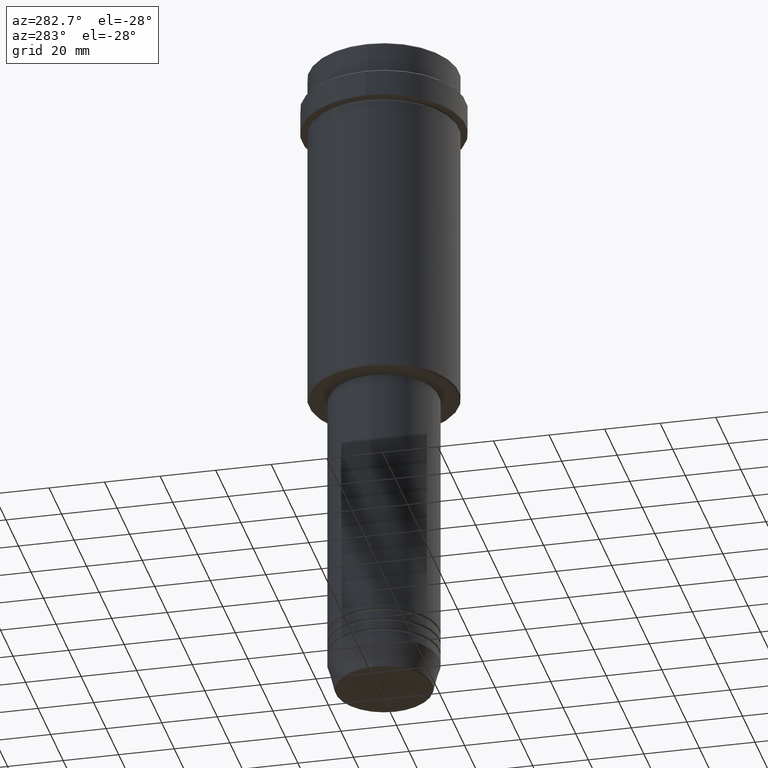
[diagram: clean part render]
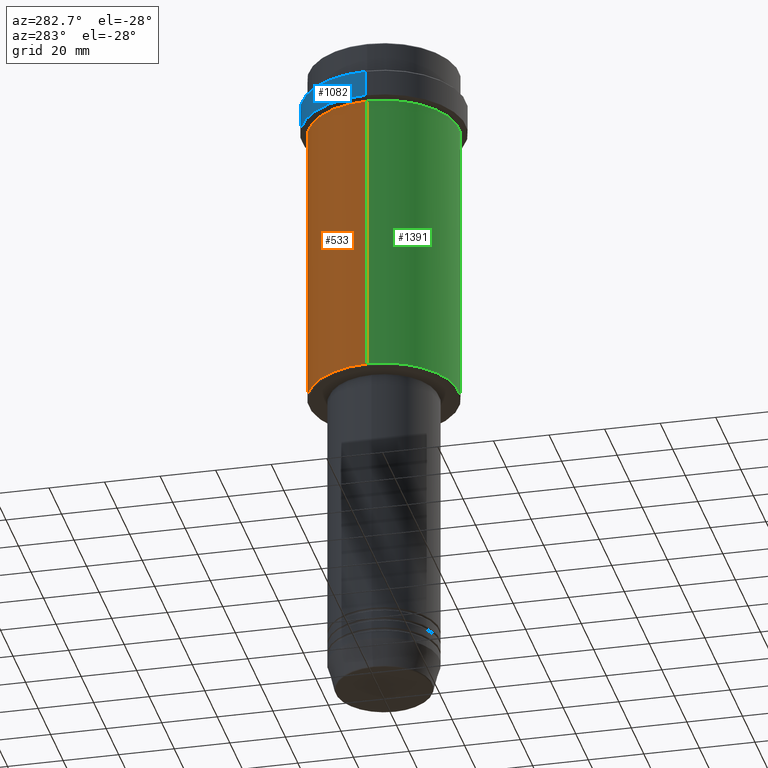
[diagram: same view with three faces highlighted in distinct colors, each labeled with its STEP entity id]
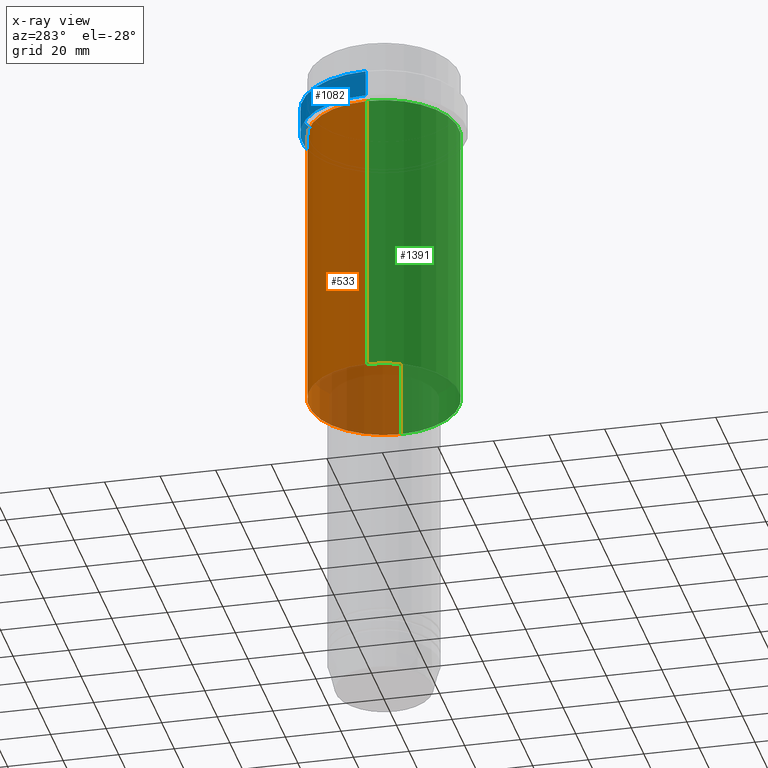
[diagram: x-ray of the same camera — body ghosted, the three highlighted faces saturated]
A machine part, auxiliary view with three faces highlighted in distinct colors.
The next image is the same camera in x-ray (body ghosted, the three faces saturated) — at least one of them is partly hidden behind the body in this view.
Their STEP definitions:

[orange] entity #533 — the highlighted cylindrical surface (partial cylindrical patch) has radius 27 mm, axis along (-0, -0, 1).
#12 = CARTESIAN_POINT ( 'NONE',  ( -27.00000000000000355, 3.306546357697854128E-15, -127.5000000000000000 ) ) ;
#21 = LINE ( 'NONE', #792, #1054 ) ;
#65 = DIRECTION ( 'NONE',  ( -0.000000000000000000, -0.000000000000000000, 1.000000000000000000 ) ) ;
#77 = CYLINDRICAL_SURFACE ( 'NONE', #354, 27.00000000000000355 ) ;
#87 = ORIENTED_EDGE ( 'NONE', *, *, #450, .T. ) ;
#127 = CARTESIAN_POINT ( 'NONE',  ( 27.00000000000000355, 0.000000000000000000, -127.5000000000000000 ) ) ;
#167 = DIRECTION ( 'NONE',  ( -0.000000000000000000, -0.000000000000000000, 1.000000000000000000 ) ) ;
#172 = CARTESIAN_POINT ( 'NONE',  ( 0.000000000000000000, 0.000000000000000000, 0.000000000000000000 ) ) ;
#188 = CARTESIAN_POINT ( 'NONE',  ( 0.000000000000000000, 0.000000000000000000, -127.5000000000000000 ) ) ;
#200 = CIRCLE ( 'NONE', #626, 27.00000000000000355 ) ;
#225 = CARTESIAN_POINT ( 'NONE',  ( -27.00000000000000355, 3.306546357697854128E-15, 0.000000000000000000 ) ) ;
#265 = VERTEX_POINT ( 'NONE', #12 ) ;
#324 = VERTEX_POINT ( 'NONE', #1069 ) ;
#354 = AXIS2_PLACEMENT_3D ( 'NONE', #172, #167, #1046 ) ;
#450 = EDGE_CURVE ( 'NONE', #1128, #265, #200, .T. ) ;
#465 = AXIS2_PLACEMENT_3D ( 'NONE', #492, #65, #1158 ) ;
#492 = CARTESIAN_POINT ( 'NONE',  ( 0.000000000000000000, 0.000000000000000000, -23.00000000000001421 ) ) ;
#494 = DIRECTION ( 'NONE',  ( -0.000000000000000000, -0.000000000000000000, 1.000000000000000000 ) ) ;
#495 = ORIENTED_EDGE ( 'NONE', *, *, #1162, .F. ) ;
#533 = ADVANCED_FACE ( 'NONE', ( #922 ), #77, .T. ) ;
#560 = DIRECTION ( 'NONE',  ( -0.000000000000000000, -0.000000000000000000, 1.000000000000000000 ) ) ;
#581 = CIRCLE ( 'NONE', #465, 27.00000000000000355 ) ;
#595 = EDGE_LOOP ( 'NONE', ( #87, #1412, #650, #495 ) ) ;
#626 = AXIS2_PLACEMENT_3D ( 'NONE', #188, #494, #1155 ) ;
#629 = VECTOR ( 'NONE', #1311, 1000.000000000000000 ) ;
#650 = ORIENTED_EDGE ( 'NONE', *, *, #1343, .F. ) ;
#792 = CARTESIAN_POINT ( 'NONE',  ( 27.00000000000000355, 0.000000000000000000, 0.000000000000000000 ) ) ;
#922 = FACE_OUTER_BOUND ( 'NONE', #595, .T. ) ;
#979 = CARTESIAN_POINT ( 'NONE',  ( -27.00000000000000355, 3.306546357697854128E-15, -23.00000000000001421 ) ) ;
#1004 = EDGE_CURVE ( 'NONE', #265, #1026, #1094, .T. ) ;
#1026 = VERTEX_POINT ( 'NONE', #979 ) ;
#1046 = DIRECTION ( 'NONE',  ( 1.000000000000000000, 0.000000000000000000, 0.000000000000000000 ) ) ;
#1054 = VECTOR ( 'NONE', #560, 1000.000000000000000 ) ;
#1069 = CARTESIAN_POINT ( 'NONE',  ( 27.00000000000000355, 0.000000000000000000, -23.00000000000001421 ) ) ;
#1094 = LINE ( 'NONE', #225, #629 ) ;
#1128 = VERTEX_POINT ( 'NONE', #127 ) ;
#1155 = DIRECTION ( 'NONE',  ( -1.000000000000000000, 0.000000000000000000, 0.000000000000000000 ) ) ;
#1158 = DIRECTION ( 'NONE',  ( 1.000000000000000000, 0.000000000000000000, 0.000000000000000000 ) ) ;
#1162 = EDGE_CURVE ( 'NONE', #1128, #324, #21, .T. ) ;
#1311 = DIRECTION ( 'NONE',  ( -0.000000000000000000, -0.000000000000000000, 1.000000000000000000 ) ) ;
#1343 = EDGE_CURVE ( 'NONE', #324, #1026, #581, .T. ) ;
#1412 = ORIENTED_EDGE ( 'NONE', *, *, #1004, .T. ) ;

[blue] entity #1082 — the highlighted cylindrical surface (partial cylindrical patch) has radius 29.5 mm, axis along (-0, -0, 1).
#114 = AXIS2_PLACEMENT_3D ( 'NONE', #1296, #882, #1104 ) ;
#139 = DIRECTION ( 'NONE',  ( -0.000000000000000000, -0.000000000000000000, 1.000000000000000000 ) ) ;
#159 = EDGE_CURVE ( 'NONE', #688, #1161, #221, .T. ) ;
#166 = EDGE_CURVE ( 'NONE', #971, #1330, #886, .T. ) ;
#198 = ORIENTED_EDGE ( 'NONE', *, *, #955, .F. ) ;
#221 = CIRCLE ( 'NONE', #1360, 29.50000000000000000 ) ;
#234 = CARTESIAN_POINT ( 'NONE',  ( 0.000000000000000000, 0.000000000000000000, -12.49999999999994849 ) ) ;
#281 = CARTESIAN_POINT ( 'NONE',  ( -29.50000000000000000, 3.612708057484691604E-15, -12.49999999999994849 ) ) ;
#287 = EDGE_LOOP ( 'NONE', ( #1202, #1148, #1032, #198 ) ) ;
#424 = DIRECTION ( 'NONE',  ( 0.000000000000000000, 0.000000000000000000, -1.000000000000000000 ) ) ;
#431 = FACE_OUTER_BOUND ( 'NONE', #287, .T. ) ;
#542 = CARTESIAN_POINT ( 'NONE',  ( 0.000000000000000000, 0.000000000000000000, -22.00000000000000711 ) ) ;
#658 = CARTESIAN_POINT ( 'NONE',  ( 29.50000000000000000, 0.000000000000000000, -12.49999999999994849 ) ) ;
#673 = LINE ( 'NONE', #1017, #1362 ) ;
#688 = VERTEX_POINT ( 'NONE', #281 ) ;
#693 = EDGE_CURVE ( 'NONE', #1330, #688, #673, .T. ) ;
#702 = CARTESIAN_POINT ( 'NONE',  ( -29.49999999999999645, 3.612708057484690815E-15, -22.00000000000000711 ) ) ;
#726 = DIRECTION ( 'NONE',  ( -0.000000000000000000, -0.000000000000000000, 1.000000000000000000 ) ) ;
#882 = DIRECTION ( 'NONE',  ( -0.000000000000000000, -0.000000000000000000, 1.000000000000000000 ) ) ;
#886 = CIRCLE ( 'NONE', #1209, 29.49999999999999645 ) ;
#939 = LINE ( 'NONE', #1055, #1336 ) ;
#955 = EDGE_CURVE ( 'NONE', #971, #1161, #939, .T. ) ;
#971 = VERTEX_POINT ( 'NONE', #1398 ) ;
#999 = DIRECTION ( 'NONE',  ( -0.000000000000000000, -0.000000000000000000, 1.000000000000000000 ) ) ;
#1017 = CARTESIAN_POINT ( 'NONE',  ( -29.50000000000000000, 3.612708057484691604E-15, 0.000000000000000000 ) ) ;
#1032 = ORIENTED_EDGE ( 'NONE', *, *, #159, .T. ) ;
#1055 = CARTESIAN_POINT ( 'NONE',  ( 29.50000000000000000, 0.000000000000000000, 0.000000000000000000 ) ) ;
#1082 = ADVANCED_FACE ( 'NONE', ( #431 ), #1293, .T. ) ;
#1089 = DIRECTION ( 'NONE',  ( 1.000000000000000000, 0.000000000000000000, 0.000000000000000000 ) ) ;
#1104 = DIRECTION ( 'NONE',  ( 1.000000000000000000, 0.000000000000000000, 0.000000000000000000 ) ) ;
#1148 = ORIENTED_EDGE ( 'NONE', *, *, #693, .T. ) ;
#1161 = VERTEX_POINT ( 'NONE', #658 ) ;
#1202 = ORIENTED_EDGE ( 'NONE', *, *, #166, .T. ) ;
#1209 = AXIS2_PLACEMENT_3D ( 'NONE', #542, #999, #1089 ) ;
#1293 = CYLINDRICAL_SURFACE ( 'NONE', #114, 29.50000000000000000 ) ;
#1296 = CARTESIAN_POINT ( 'NONE',  ( 0.000000000000000000, 0.000000000000000000, 0.000000000000000000 ) ) ;
#1306 = DIRECTION ( 'NONE',  ( 1.000000000000000000, 0.000000000000000000, 0.000000000000000000 ) ) ;
#1330 = VERTEX_POINT ( 'NONE', #702 ) ;
#1336 = VECTOR ( 'NONE', #726, 1000.000000000000000 ) ;
#1360 = AXIS2_PLACEMENT_3D ( 'NONE', #234, #424, #1306 ) ;
#1362 = VECTOR ( 'NONE', #139, 1000.000000000000000 ) ;
#1398 = CARTESIAN_POINT ( 'NONE',  ( 29.49999999999999645, 0.000000000000000000, -22.00000000000000711 ) ) ;

[green] entity #1391 — the highlighted cylindrical surface (partial cylindrical patch) has radius 27 mm, axis along (-0, -0, 1).
#12 = CARTESIAN_POINT ( 'NONE',  ( -27.00000000000000355, 3.306546357697854128E-15, -127.5000000000000000 ) ) ;
#20 = AXIS2_PLACEMENT_3D ( 'NONE', #1172, #78, #500 ) ;
#21 = LINE ( 'NONE', #792, #1054 ) ;
#78 = DIRECTION ( 'NONE',  ( -0.000000000000000000, -0.000000000000000000, 1.000000000000000000 ) ) ;
#102 = DIRECTION ( 'NONE',  ( 1.000000000000000000, 0.000000000000000000, 0.000000000000000000 ) ) ;
#127 = CARTESIAN_POINT ( 'NONE',  ( 27.00000000000000355, 0.000000000000000000, -127.5000000000000000 ) ) ;
#225 = CARTESIAN_POINT ( 'NONE',  ( -27.00000000000000355, 3.306546357697854128E-15, 0.000000000000000000 ) ) ;
#265 = VERTEX_POINT ( 'NONE', #12 ) ;
#302 = AXIS2_PLACEMENT_3D ( 'NONE', #767, #536, #102 ) ;
#324 = VERTEX_POINT ( 'NONE', #1069 ) ;
#376 = CYLINDRICAL_SURFACE ( 'NONE', #20, 27.00000000000000355 ) ;
#489 = AXIS2_PLACEMENT_3D ( 'NONE', #925, #1060, #950 ) ;
#500 = DIRECTION ( 'NONE',  ( 1.000000000000000000, 0.000000000000000000, 0.000000000000000000 ) ) ;
#536 = DIRECTION ( 'NONE',  ( -0.000000000000000000, -0.000000000000000000, 1.000000000000000000 ) ) ;
#560 = DIRECTION ( 'NONE',  ( -0.000000000000000000, -0.000000000000000000, 1.000000000000000000 ) ) ;
#582 = ORIENTED_EDGE ( 'NONE', *, *, #1095, .F. ) ;
#629 = VECTOR ( 'NONE', #1311, 1000.000000000000000 ) ;
#656 = ORIENTED_EDGE ( 'NONE', *, *, #1162, .T. ) ;
#767 = CARTESIAN_POINT ( 'NONE',  ( 0.000000000000000000, 0.000000000000000000, -23.00000000000001421 ) ) ;
#792 = CARTESIAN_POINT ( 'NONE',  ( 27.00000000000000355, 0.000000000000000000, 0.000000000000000000 ) ) ;
#843 = ORIENTED_EDGE ( 'NONE', *, *, #1366, .T. ) ;
#925 = CARTESIAN_POINT ( 'NONE',  ( 0.000000000000000000, 0.000000000000000000, -127.5000000000000000 ) ) ;
#950 = DIRECTION ( 'NONE',  ( -1.000000000000000000, 0.000000000000000000, 0.000000000000000000 ) ) ;
#979 = CARTESIAN_POINT ( 'NONE',  ( -27.00000000000000355, 3.306546357697854128E-15, -23.00000000000001421 ) ) ;
#1004 = EDGE_CURVE ( 'NONE', #265, #1026, #1094, .T. ) ;
#1026 = VERTEX_POINT ( 'NONE', #979 ) ;
#1054 = VECTOR ( 'NONE', #560, 1000.000000000000000 ) ;
#1060 = DIRECTION ( 'NONE',  ( -0.000000000000000000, -0.000000000000000000, 1.000000000000000000 ) ) ;
#1069 = CARTESIAN_POINT ( 'NONE',  ( 27.00000000000000355, 0.000000000000000000, -23.00000000000001421 ) ) ;
#1094 = LINE ( 'NONE', #225, #629 ) ;
#1095 = EDGE_CURVE ( 'NONE', #1026, #324, #1410, .T. ) ;
#1120 = CIRCLE ( 'NONE', #489, 27.00000000000000355 ) ;
#1125 = ORIENTED_EDGE ( 'NONE', *, *, #1004, .F. ) ;
#1128 = VERTEX_POINT ( 'NONE', #127 ) ;
#1162 = EDGE_CURVE ( 'NONE', #1128, #324, #21, .T. ) ;
#1172 = CARTESIAN_POINT ( 'NONE',  ( 0.000000000000000000, 0.000000000000000000, 0.000000000000000000 ) ) ;
#1311 = DIRECTION ( 'NONE',  ( -0.000000000000000000, -0.000000000000000000, 1.000000000000000000 ) ) ;
#1357 = FACE_OUTER_BOUND ( 'NONE', #1377, .T. ) ;
#1366 = EDGE_CURVE ( 'NONE', #265, #1128, #1120, .T. ) ;
#1377 = EDGE_LOOP ( 'NONE', ( #1125, #843, #656, #582 ) ) ;
#1391 = ADVANCED_FACE ( 'NONE', ( #1357 ), #376, .T. ) ;
#1410 = CIRCLE ( 'NONE', #302, 27.00000000000000355 ) ;